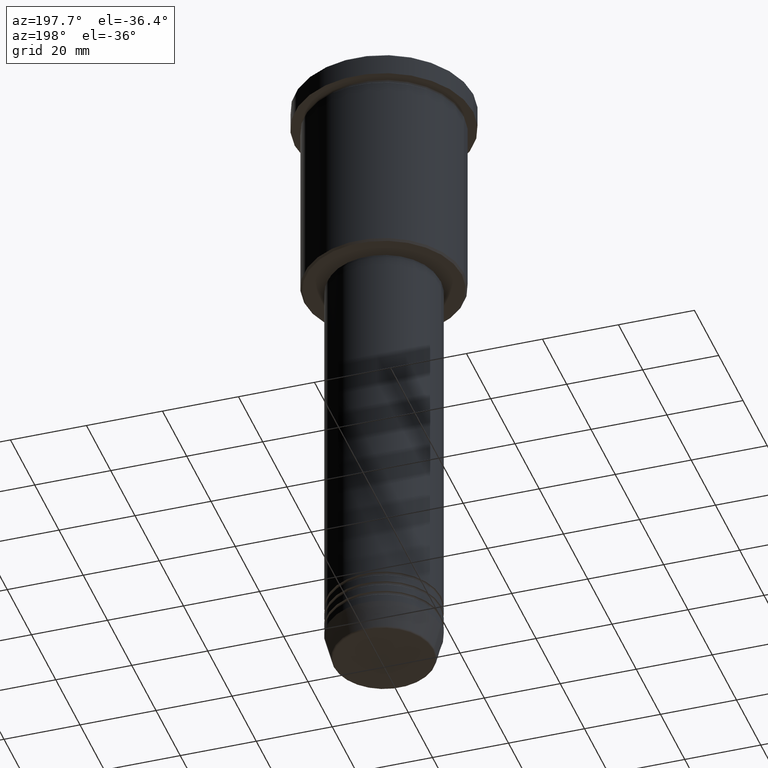
[diagram: clean part render]
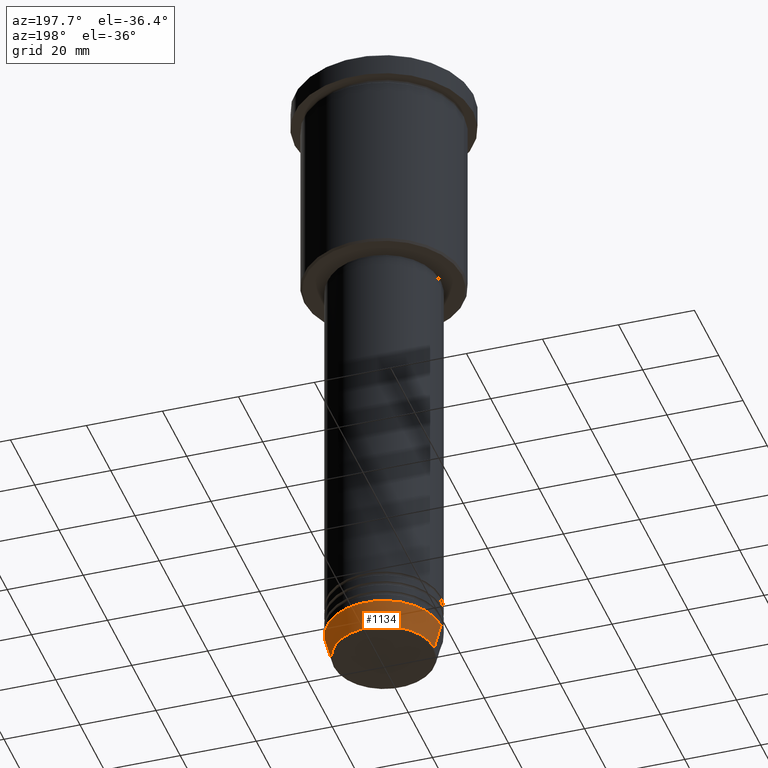
[diagram: same view with one face highlighted and labeled with its STEP entity id]
A machine part, auxiliary view. The second image highlights one B-rep face of the part: STEP entity #1134.
In plain terms, the highlighted conical surface has half-angle 15 deg.
Its self-contained STEP definition (entity closure, byte-faithful):
#32 = CIRCLE ( 'NONE', #470, 15.00000000000000000 ) ;
#66 = CIRCLE ( 'NONE', #159, 13.22365507213719305 ) ;
#76 = CARTESIAN_POINT ( 'NONE',  ( 15.00000000000000000, 0.000000000000000000, -164.0000000000000000 ) ) ;
#118 = DIRECTION ( 'NONE',  ( 0.2588190451025213501, 0.000000000000000000, 0.9659258262890680902 ) ) ;
#159 = AXIS2_PLACEMENT_3D ( 'NONE', #389, #376, #1120 ) ;
#172 = CARTESIAN_POINT ( 'NONE',  ( -15.00000000000000000, 1.836970198721029589E-15, -164.0000000000000000 ) ) ;
#259 = CARTESIAN_POINT ( 'NONE',  ( 0.000000000000000000, 0.000000000000000000, -164.0000000000000000 ) ) ;
#276 = ORIENTED_EDGE ( 'NONE', *, *, #870, .T. ) ;
#291 = VERTEX_POINT ( 'NONE', #346 ) ;
#297 = LINE ( 'NONE', #1031, #351 ) ;
#299 = VERTEX_POINT ( 'NONE', #172 ) ;
#346 = CARTESIAN_POINT ( 'NONE',  ( 13.22365507213719305, 0.000000000000000000, -170.6294095225512422 ) ) ;
#351 = VECTOR ( 'NONE', #118, 1000.000000000000000 ) ;
#376 = DIRECTION ( 'NONE',  ( -0.000000000000000000, -0.000000000000000000, 1.000000000000000000 ) ) ;
#389 = CARTESIAN_POINT ( 'NONE',  ( 0.000000000000000000, 0.000000000000000000, -170.6294095225512422 ) ) ;
#394 = VECTOR ( 'NONE', #655, 1000.000000000000000 ) ;
#423 = CARTESIAN_POINT ( 'NONE',  ( 0.000000000000000000, 0.000000000000000000, -164.0000000000000000 ) ) ;
#440 = ORIENTED_EDGE ( 'NONE', *, *, #516, .F. ) ;
#441 = DIRECTION ( 'NONE',  ( -0.000000000000000000, -0.000000000000000000, 1.000000000000000000 ) ) ;
#470 = AXIS2_PLACEMENT_3D ( 'NONE', #423, #514, #1055 ) ;
#508 = ORIENTED_EDGE ( 'NONE', *, *, #914, .F. ) ;
#514 = DIRECTION ( 'NONE',  ( -0.000000000000000000, -0.000000000000000000, 1.000000000000000000 ) ) ;
#515 = EDGE_CURVE ( 'NONE', #291, #979, #66, .T. ) ;
#516 = EDGE_CURVE ( 'NONE', #291, #1123, #297, .T. ) ;
#529 = AXIS2_PLACEMENT_3D ( 'NONE', #259, #441, #1004 ) ;
#560 = ORIENTED_EDGE ( 'NONE', *, *, #515, .T. ) ;
#599 = CARTESIAN_POINT ( 'NONE',  ( -13.22365507213719305, 1.728200442216588583E-15, -170.6294095225512422 ) ) ;
#655 = DIRECTION ( 'NONE',  ( -0.2588190451025213501, 3.169619151431772337E-17, 0.9659258262890680902 ) ) ;
#870 = EDGE_CURVE ( 'NONE', #979, #299, #955, .T. ) ;
#914 = EDGE_CURVE ( 'NONE', #1123, #299, #32, .T. ) ;
#955 = LINE ( 'NONE', #1115, #394 ) ;
#979 = VERTEX_POINT ( 'NONE', #599 ) ;
#1004 = DIRECTION ( 'NONE',  ( 1.000000000000000000, 0.000000000000000000, 0.000000000000000000 ) ) ;
#1031 = CARTESIAN_POINT ( 'NONE',  ( 15.00000000000000000, 0.000000000000000000, -164.0000000000000000 ) ) ;
#1043 = CONICAL_SURFACE ( 'NONE', #529, 15.00000000000000000, 0.2617993877991500740 ) ;
#1055 = DIRECTION ( 'NONE',  ( 1.000000000000000000, 0.000000000000000000, 0.000000000000000000 ) ) ;
#1115 = CARTESIAN_POINT ( 'NONE',  ( -15.00000000000000000, 1.836970198721029589E-15, -164.0000000000000000 ) ) ;
#1120 = DIRECTION ( 'NONE',  ( 1.000000000000000000, 0.000000000000000000, 0.000000000000000000 ) ) ;
#1123 = VERTEX_POINT ( 'NONE', #76 ) ;
#1134 = ADVANCED_FACE ( 'NONE', ( #1175 ), #1043, .T. ) ;
#1156 = EDGE_LOOP ( 'NONE', ( #560, #276, #508, #440 ) ) ;
#1175 = FACE_OUTER_BOUND ( 'NONE', #1156, .T. ) ;